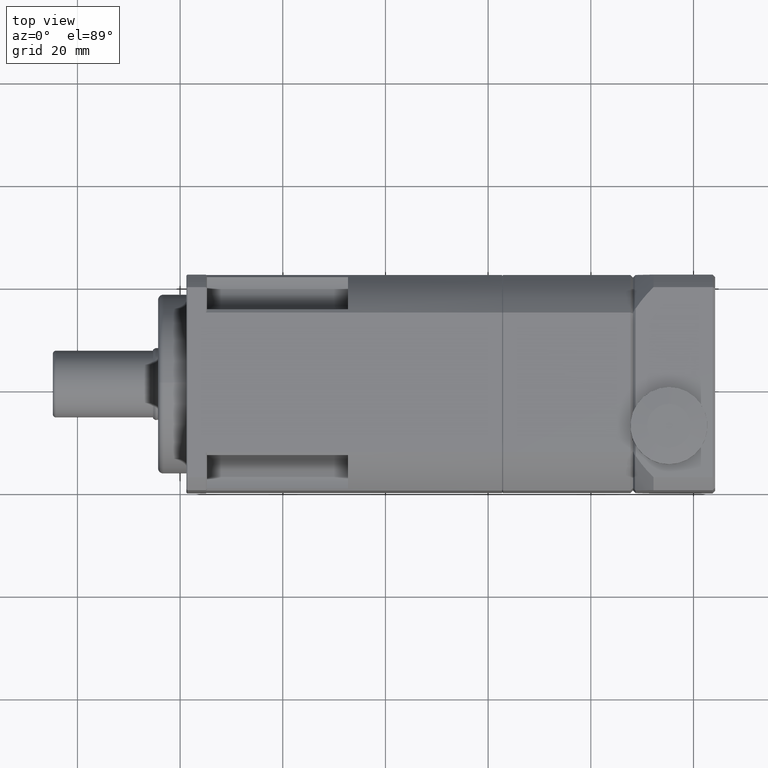
[diagram: clean part render]
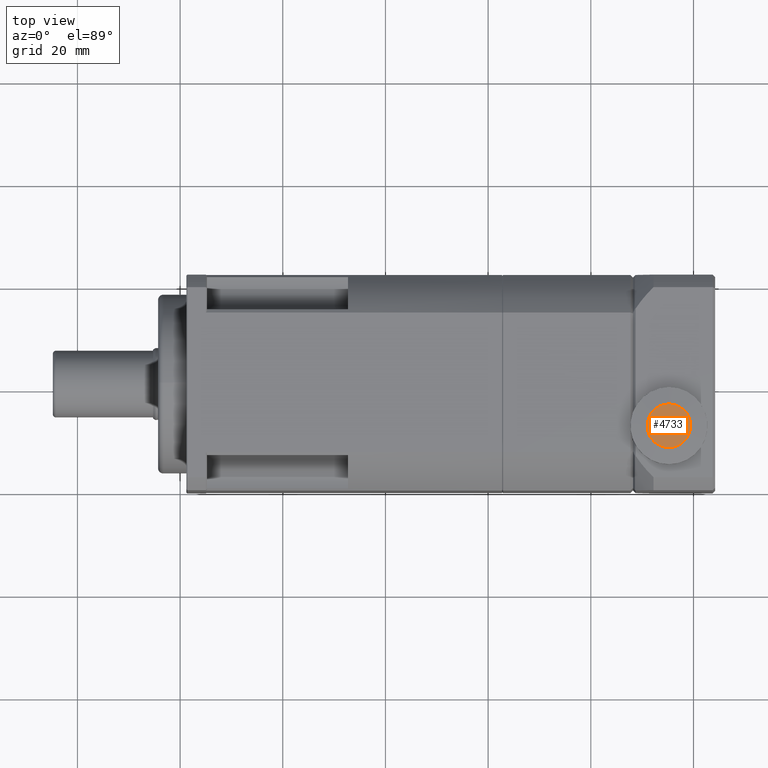
[diagram: same view with one face highlighted and labeled with its STEP entity id]
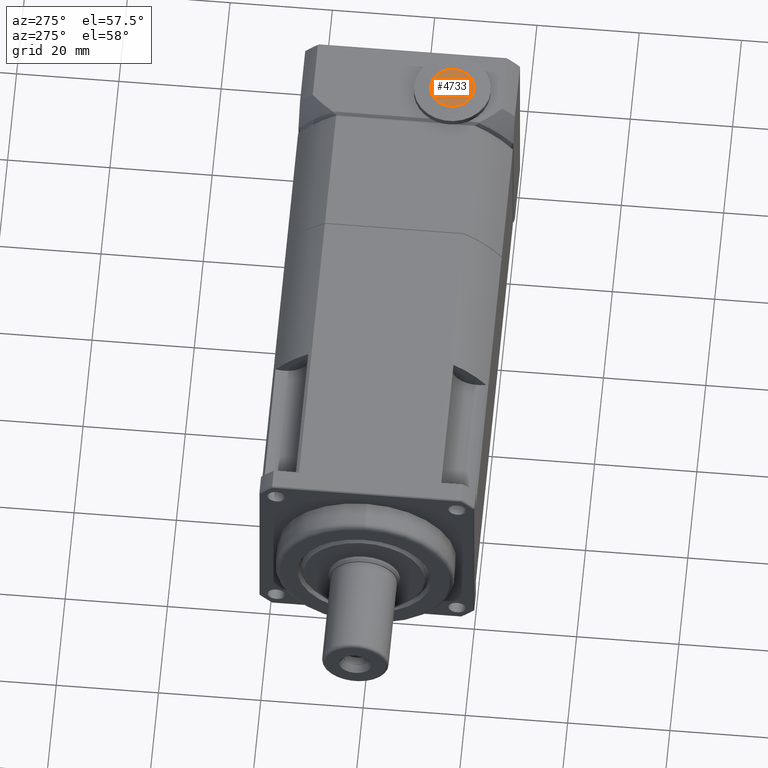
[diagram: same view with one face highlighted and labeled with its STEP entity id]
A machine part, top view. The second image highlights one B-rep face of the part: STEP entity #4733.
A second angle (auxiliary view) of the same face is appended — the face is thin or edge-on in the first view.
In plain terms, the highlighted planar face has unit normal (0, 0, 1).
Its self-contained STEP definition (entity closure, byte-faithful):
#712=PLANE('',#5105);
#1039=FACE_OUTER_BOUND('',#1395,.T.);
#1395=EDGE_LOOP('',(#3267));
#1817=CIRCLE('',#5106,4.25);
#2120=VERTEX_POINT('',#7310);
#2571=EDGE_CURVE('',#2120,#2120,#1817,.T.);
#3267=ORIENTED_EDGE('',*,*,#2571,.F.);
#4733=ADVANCED_FACE('',(#1039),#712,.T.);
#5105=AXIS2_PLACEMENT_3D('',#7309,#5832,#5833);
#5106=AXIS2_PLACEMENT_3D('',#7311,#5834,#5835);
#5832=DIRECTION('center_axis',(1.93008699861478E-15,9.82216953274033E-15,
1.));
#5833=DIRECTION('ref_axis',(1.,-9.94759830064141E-15,-1.95399252334028E-15));
#5834=DIRECTION('center_axis',(-1.93008699861478E-15,-9.82216953274033E-15,
-1.));
#5835=DIRECTION('ref_axis',(-1.,9.64466294450086E-15,1.93008699861469E-15));
#7309=CARTESIAN_POINT('Origin',(55.2159950143863,-43.1174851319122,-4.84775529413339));
#7310=CARTESIAN_POINT('',(55.2159950143863,-43.1174851319122,-4.84775529413339));
#7311=CARTESIAN_POINT('Origin',(55.2159950143863,-47.3674851319122,-4.84775529413335));